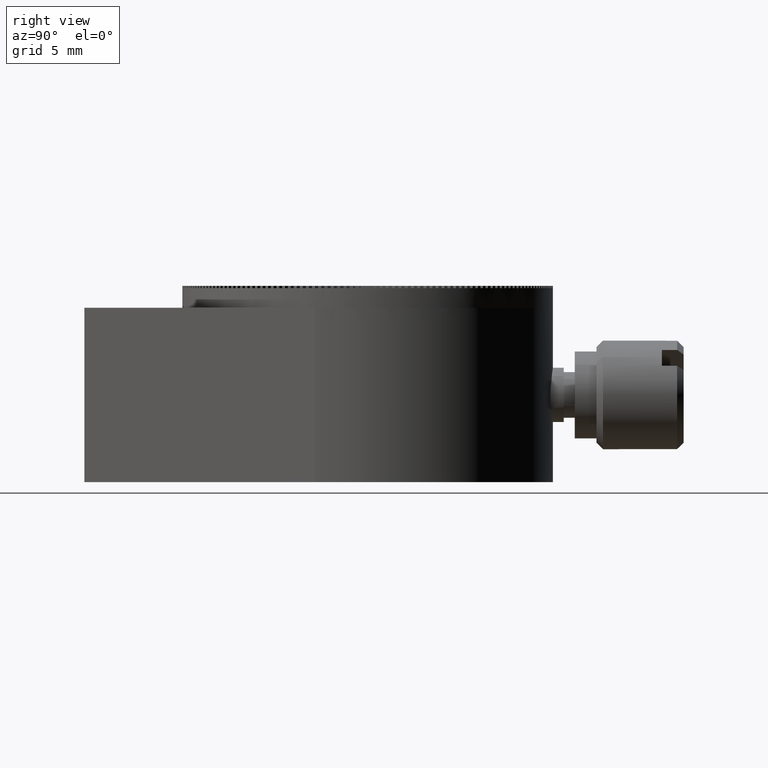
[diagram: clean part render]
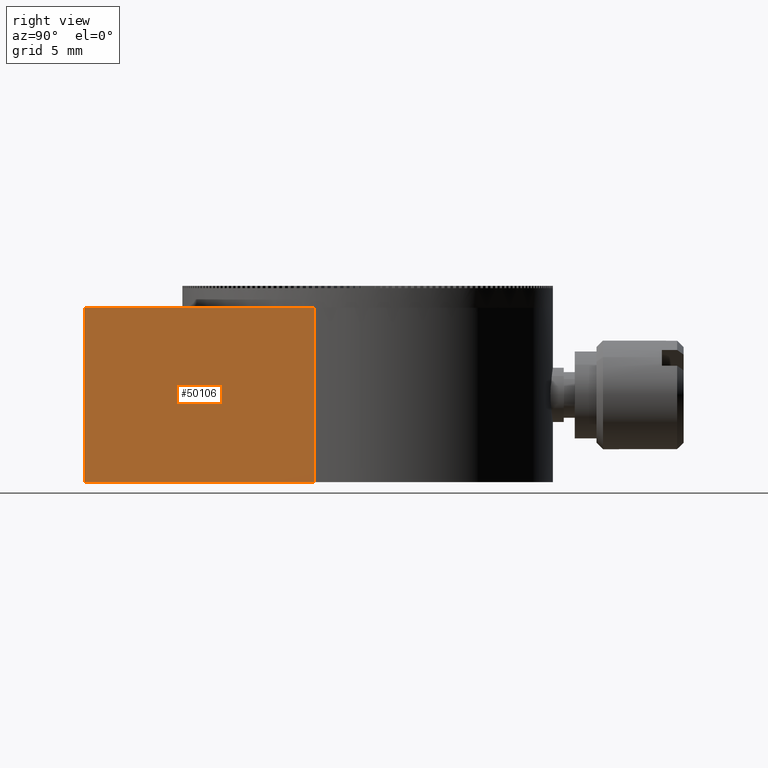
[diagram: same view with one face highlighted and labeled with its STEP entity id]
A machine part, right view. The second image highlights one B-rep face of the part: STEP entity #50106.
In plain terms, the highlighted planar face has unit normal (-0.9585, 0.2852, 0).
Its self-contained STEP definition (entity closure, byte-faithful):
#1078 = EDGE_CURVE ( 'NONE', #42200, #3101, #49917, .T. ) ;
#3101 = VERTEX_POINT ( 'NONE', #33262 ) ;
#5335 = VECTOR ( 'NONE', #58531, 1000.000000000000000 ) ;
#8720 = ORIENTED_EDGE ( 'NONE', *, *, #41903, .T. ) ;
#9932 = CARTESIAN_POINT ( 'NONE',  ( 8.146965083051258105, 8.000000000000000000, 2.424244198826441821 ) ) ;
#10657 = AXIS2_PLACEMENT_3D ( 'NONE', #19517, #57583, #24956 ) ;
#12711 = LINE ( 'NONE', #31921, #12799 ) ;
#12799 = VECTOR ( 'NONE', #13027, 1000.000000000000000 ) ;
#13027 = DIRECTION ( 'NONE',  ( 0.2852051998619342665, -0.000000000000000000, -0.9584664803589711957 ) ) ;
#13445 = LINE ( 'NONE', #9932, #5335 ) ;
#14270 = EDGE_LOOP ( 'NONE', ( #48422, #51715, #22007, #8720 ) ) ;
#15411 = VERTEX_POINT ( 'NONE', #59021 ) ;
#15731 = CARTESIAN_POINT ( 'NONE',  ( 5.000000000000001776, 8.000000000000000000, 12.99999999999999822 ) ) ;
#19517 = CARTESIAN_POINT ( 'NONE',  ( 8.146965083051258105, 8.000000000000000000, 2.424244198826441821 ) ) ;
#19774 = VECTOR ( 'NONE', #26581, 1000.000000000000000 ) ;
#21156 = CARTESIAN_POINT ( 'NONE',  ( 8.146965083051258105, 0.000000000000000000, 2.424244198826441821 ) ) ;
#22007 = ORIENTED_EDGE ( 'NONE', *, *, #29675, .F. ) ;
#22126 = LINE ( 'NONE', #15731, #38145 ) ;
#24956 = DIRECTION ( 'NONE',  ( -0.2852051998619342665, 0.000000000000000000, 0.9584664803589711957 ) ) ;
#26581 = DIRECTION ( 'NONE',  ( 0.2852051998619342665, -0.000000000000000000, -0.9584664803589711957 ) ) ;
#29675 = EDGE_CURVE ( 'NONE', #15411, #47003, #12711, .T. ) ;
#29743 = FACE_OUTER_BOUND ( 'NONE', #14270, .T. ) ;
#31880 = CARTESIAN_POINT ( 'NONE',  ( 5.000000000000001776, 0.000000000000000000, 12.99999999999999822 ) ) ;
#31921 = CARTESIAN_POINT ( 'NONE',  ( 8.146965083051258105, 8.000000000000000000, 2.424244198826441821 ) ) ;
#32839 = CARTESIAN_POINT ( 'NONE',  ( 8.146965083051258105, 8.000000000000000000, 2.424244198826441821 ) ) ;
#33262 = CARTESIAN_POINT ( 'NONE',  ( 8.146965083051258105, 0.000000000000000000, 2.424244198826441821 ) ) ;
#33299 = PLANE ( 'NONE',  #10657 ) ;
#38145 = VECTOR ( 'NONE', #45465, 1000.000000000000000 ) ;
#41903 = EDGE_CURVE ( 'NONE', #15411, #42200, #22126, .T. ) ;
#42200 = VERTEX_POINT ( 'NONE', #31880 ) ;
#45465 = DIRECTION ( 'NONE',  ( -0.000000000000000000, -1.000000000000000000, -0.000000000000000000 ) ) ;
#47003 = VERTEX_POINT ( 'NONE', #32839 ) ;
#48422 = ORIENTED_EDGE ( 'NONE', *, *, #1078, .T. ) ;
#49917 = LINE ( 'NONE', #21156, #19774 ) ;
#50106 = ADVANCED_FACE ( 'NONE', ( #29743 ), #33299, .F. ) ;
#51715 = ORIENTED_EDGE ( 'NONE', *, *, #60298, .F. ) ;
#57583 = DIRECTION ( 'NONE',  ( -0.9584664803589711957, 0.000000000000000000, -0.2852051998619342665 ) ) ;
#58531 = DIRECTION ( 'NONE',  ( -0.000000000000000000, -1.000000000000000000, -0.000000000000000000 ) ) ;
#59021 = CARTESIAN_POINT ( 'NONE',  ( 5.000000000000001776, 8.000000000000000000, 12.99999999999999822 ) ) ;
#60298 = EDGE_CURVE ( 'NONE', #47003, #3101, #13445, .T. ) ;